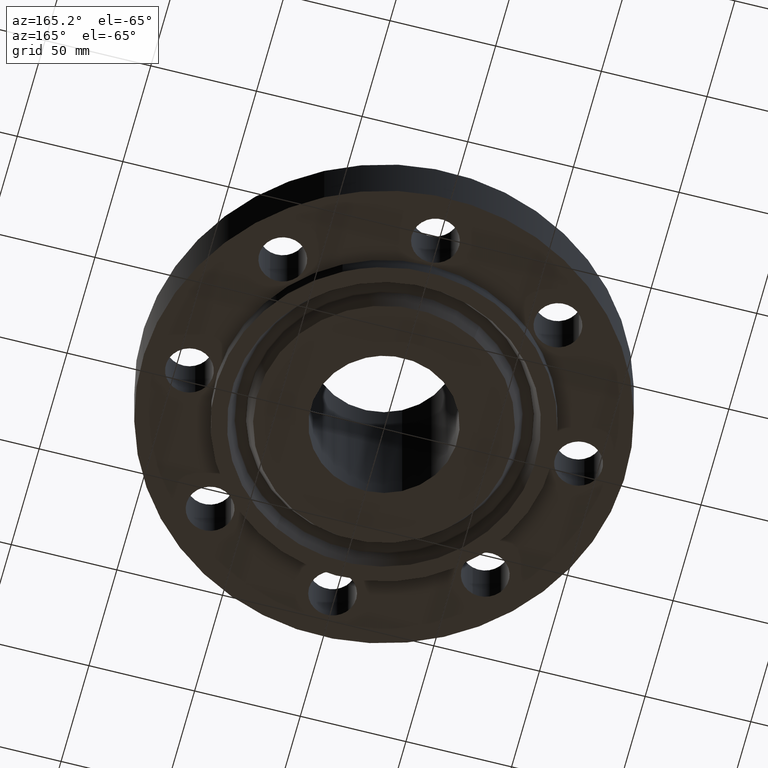
[diagram: clean part render]
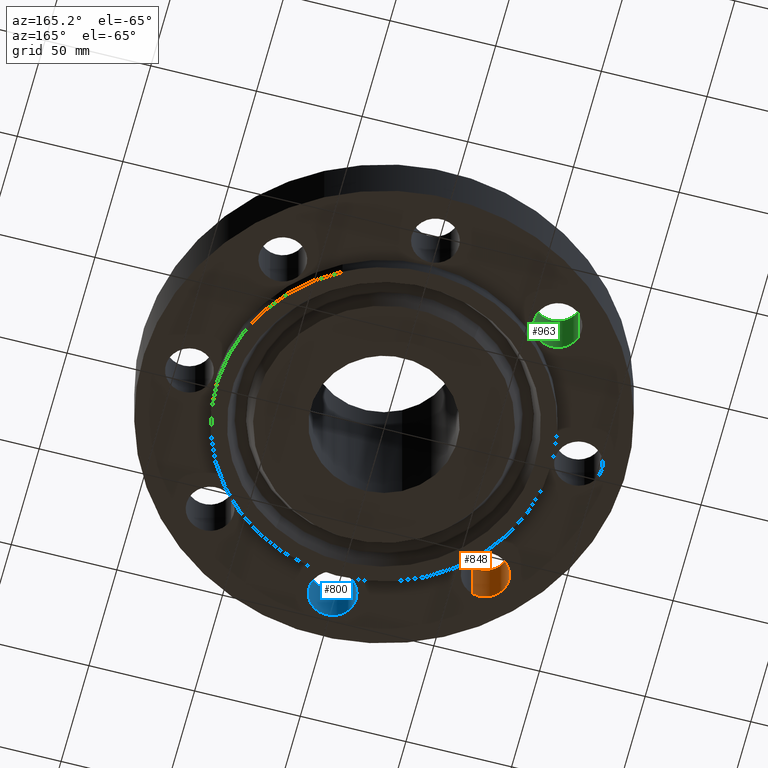
[diagram: same view with three faces highlighted in distinct colors, each labeled with its STEP entity id]
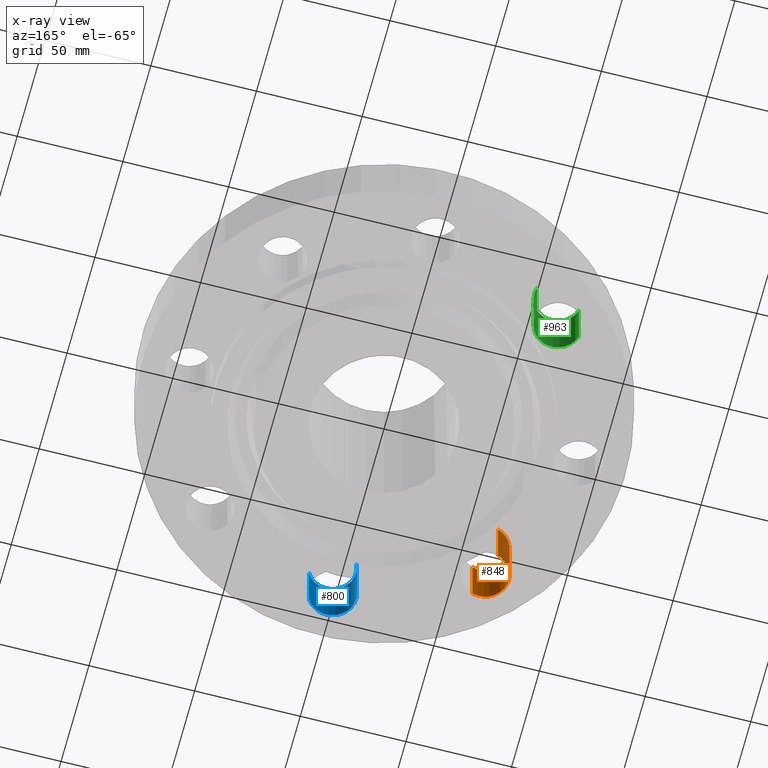
[diagram: x-ray of the same camera — body ghosted, the three highlighted faces saturated]
A machine part, auxiliary view with three faces highlighted in distinct colors.
The next image is the same camera in x-ray (body ghosted, the three faces saturated) — at least one of them is partly hidden behind the body in this view.
Their STEP definitions:

[orange] entity #848 — the highlighted cylindrical surface (edge-blend (fillet) strip) has radius 11.176 mm, axis along (0, 0, -1).
#255=AXIS2_PLACEMENT_3D('Circle Axis2P3D',#253,#254,$) ;
#444=AXIS2_PLACEMENT_3D('Circle Axis2P3D',#442,#443,$) ;
#830=AXIS2_PLACEMENT_3D('Cylinder Axis2P3D',#827,#828,#829) ;
#253=CARTESIAN_POINT('Axis2P3D Location',(-2.56326208182,-2.56326208179,0.)) ;
#257=CARTESIAN_POINT('Vertex',(-2.43938468815,-2.98546391898,0.)) ;
#259=CARTESIAN_POINT('Vertex',(-2.68713947554,-2.14106024462,0.)) ;
#437=CARTESIAN_POINT('Vertex',(-2.68713947551,-2.14106024461,1.11999999999)) ;
#439=CARTESIAN_POINT('Vertex',(-2.43938468811,-2.98546391901,1.11999999999)) ;
#442=CARTESIAN_POINT('Axis2P3D Location',(-2.5632620818,-2.5632620818,1.12)) ;
#827=CARTESIAN_POINT('Axis2P3D Location',(-2.56326208181,-2.56326208181,1.11606299213)) ;
#832=CARTESIAN_POINT('Line Origine',(-2.43938468811,-2.98546391901,0.56000000001)) ;
#837=CARTESIAN_POINT('Line Origine',(-2.68713947551,-2.14106024461,0.56000000001)) ;
#254=DIRECTION('Axis2P3D Direction',(0.,0.,-0.0393700787402)) ;
#443=DIRECTION('Axis2P3D Direction',(0.,0.,-0.0393700787402)) ;
#828=DIRECTION('Axis2P3D Direction',(0.,0.,-0.0393700787402)) ;
#829=DIRECTION('Axis2P3D XDirection',(0.0110842335096,-0.0377775444876,0.)) ;
#833=DIRECTION('Vector Direction',(0.,0.,-0.0393700787402)) ;
#838=DIRECTION('Vector Direction',(0.,0.,-0.0393700787402)) ;
#834=VECTOR('Line Direction',#833,0.0393700787402) ;
#839=VECTOR('Line Direction',#838,0.0393700787402) ;
#843=ORIENTED_EDGE('',*,*,#836,.F.) ;
#844=ORIENTED_EDGE('',*,*,#261,.T.) ;
#845=ORIENTED_EDGE('',*,*,#841,.T.) ;
#846=ORIENTED_EDGE('',*,*,#446,.F.) ;
#848=ADVANCED_FACE('PartBody',(#847),#831,.F.) ;
#256=CIRCLE('generated circle',#255,0.439999999984) ;
#445=CIRCLE('generated circle',#444,0.439999999984) ;
#831=CYLINDRICAL_SURFACE('generated cylinder',#830,0.440000000002) ;
#261=EDGE_CURVE('',#258,#260,#256,.T.) ;
#446=EDGE_CURVE('',#440,#438,#445,.T.) ;
#836=EDGE_CURVE('',#258,#440,#835,.F.) ;
#841=EDGE_CURVE('',#260,#438,#840,.F.) ;
#842=EDGE_LOOP('',(#843,#844,#845,#846)) ;
#847=FACE_OUTER_BOUND('',#842,.T.) ;
#835=LINE('Line',#832,#834) ;
#840=LINE('Line',#837,#839) ;
#258=VERTEX_POINT('',#257) ;
#260=VERTEX_POINT('',#259) ;
#438=VERTEX_POINT('',#437) ;
#440=VERTEX_POINT('',#439) ;

[blue] entity #800 — the highlighted cylindrical surface (edge-blend (fillet) strip) has radius 11.176 mm, axis along (0, 0, -1).
#237=AXIS2_PLACEMENT_3D('Circle Axis2P3D',#235,#236,$) ;
#426=AXIS2_PLACEMENT_3D('Circle Axis2P3D',#424,#425,$) ;
#782=AXIS2_PLACEMENT_3D('Cylinder Axis2P3D',#779,#780,#781) ;
#235=CARTESIAN_POINT('Axis2P3D Location',(3.08535699177E-011,-3.62499999998,0.)) ;
#239=CARTESIAN_POINT('Vertex',(0.386136327247,-3.83594723703,0.)) ;
#241=CARTESIAN_POINT('Vertex',(-0.386136327247,-3.41405276303,0.)) ;
#419=CARTESIAN_POINT('Vertex',(-0.386136327236,-3.41405276303,1.11999999999)) ;
#421=CARTESIAN_POINT('Vertex',(0.386136327233,-3.835947237,1.11999999999)) ;
#424=CARTESIAN_POINT('Axis2P3D Location',(6.99907323699E-012,-3.625,1.12)) ;
#779=CARTESIAN_POINT('Axis2P3D Location',(4.43934464693E-016,-3.62500000001,1.11606299213)) ;
#784=CARTESIAN_POINT('Line Origine',(0.386136327233,-3.835947237,0.56000000001)) ;
#789=CARTESIAN_POINT('Line Origine',(-0.386136327233,-3.41405276302,0.56000000001)) ;
#236=DIRECTION('Axis2P3D Direction',(0.,0.,-0.0393700787402)) ;
#425=DIRECTION('Axis2P3D Direction',(0.,0.,-0.0393700787402)) ;
#780=DIRECTION('Axis2P3D Direction',(0.,0.,-0.0393700787402)) ;
#781=DIRECTION('Axis2P3D XDirection',(0.0345504945626,-0.0188750212049,0.)) ;
#785=DIRECTION('Vector Direction',(0.,0.,-0.0393700787402)) ;
#790=DIRECTION('Vector Direction',(0.,0.,-0.0393700787402)) ;
#786=VECTOR('Line Direction',#785,0.0393700787402) ;
#791=VECTOR('Line Direction',#790,0.0393700787402) ;
#795=ORIENTED_EDGE('',*,*,#788,.F.) ;
#796=ORIENTED_EDGE('',*,*,#243,.T.) ;
#797=ORIENTED_EDGE('',*,*,#793,.T.) ;
#798=ORIENTED_EDGE('',*,*,#428,.F.) ;
#800=ADVANCED_FACE('PartBody',(#799),#783,.F.) ;
#238=CIRCLE('generated circle',#237,0.44000000002) ;
#427=CIRCLE('generated circle',#426,0.440000000002) ;
#783=CYLINDRICAL_SURFACE('generated cylinder',#782,0.440000000002) ;
#243=EDGE_CURVE('',#240,#242,#238,.T.) ;
#428=EDGE_CURVE('',#422,#420,#427,.T.) ;
#788=EDGE_CURVE('',#240,#422,#787,.F.) ;
#793=EDGE_CURVE('',#242,#420,#792,.F.) ;
#794=EDGE_LOOP('',(#795,#796,#797,#798)) ;
#799=FACE_OUTER_BOUND('',#794,.T.) ;
#787=LINE('Line',#784,#786) ;
#792=LINE('Line',#789,#791) ;
#240=VERTEX_POINT('',#239) ;
#242=VERTEX_POINT('',#241) ;
#420=VERTEX_POINT('',#419) ;
#422=VERTEX_POINT('',#421) ;

[green] entity #963 — the highlighted cylindrical surface (edge-blend (fillet) strip) has radius 11.176 mm, axis along (0, 0, -1).
#300=AXIS2_PLACEMENT_3D('Circle Axis2P3D',#298,#299,$) ;
#471=AXIS2_PLACEMENT_3D('Circle Axis2P3D',#469,#470,$) ;
#955=AXIS2_PLACEMENT_3D('Cylinder Axis2P3D',#952,#953,#954) ;
#293=CARTESIAN_POINT('Vertex',(-2.98546391899,2.43938468808,0.)) ;
#295=CARTESIAN_POINT('Vertex',(-2.14106024463,2.68713947548,0.)) ;
#298=CARTESIAN_POINT('Axis2P3D Location',(-2.56326208181,2.5632620818,0.)) ;
#469=CARTESIAN_POINT('Axis2P3D Location',(-2.56326208179,2.56326208179,1.12)) ;
#473=CARTESIAN_POINT('Vertex',(-2.14106024461,2.68713947551,1.11999999999)) ;
#475=CARTESIAN_POINT('Vertex',(-2.98546391901,2.43938468811,1.11999999999)) ;
#928=CARTESIAN_POINT('Line Origine',(-2.98546391901,2.43938468811,0.56000000001)) ;
#933=CARTESIAN_POINT('Line Origine',(-2.14106024461,2.68713947551,0.56000000001)) ;
#952=CARTESIAN_POINT('Axis2P3D Location',(-2.56326208181,2.56326208181,1.11606299213)) ;
#299=DIRECTION('Axis2P3D Direction',(0.,0.,-0.0393700787402)) ;
#470=DIRECTION('Axis2P3D Direction',(0.,0.,-0.0393700787402)) ;
#929=DIRECTION('Vector Direction',(0.,0.,-0.0393700787402)) ;
#934=DIRECTION('Vector Direction',(0.,0.,-0.0393700787402)) ;
#953=DIRECTION('Axis2P3D Direction',(0.,0.,-0.0393700787402)) ;
#954=DIRECTION('Axis2P3D XDirection',(0.0377775444876,0.0110842335096,0.)) ;
#930=VECTOR('Line Direction',#929,0.0393700787402) ;
#935=VECTOR('Line Direction',#934,0.0393700787402) ;
#958=ORIENTED_EDGE('',*,*,#937,.F.) ;
#959=ORIENTED_EDGE('',*,*,#302,.T.) ;
#960=ORIENTED_EDGE('',*,*,#932,.T.) ;
#961=ORIENTED_EDGE('',*,*,#477,.F.) ;
#963=ADVANCED_FACE('PartBody',(#962),#956,.F.) ;
#301=CIRCLE('generated circle',#300,0.439999999984) ;
#472=CIRCLE('generated circle',#471,0.439999999984) ;
#956=CYLINDRICAL_SURFACE('generated cylinder',#955,0.440000000002) ;
#302=EDGE_CURVE('',#296,#294,#301,.T.) ;
#477=EDGE_CURVE('',#474,#476,#472,.T.) ;
#932=EDGE_CURVE('',#294,#476,#931,.F.) ;
#937=EDGE_CURVE('',#296,#474,#936,.F.) ;
#957=EDGE_LOOP('',(#958,#959,#960,#961)) ;
#962=FACE_OUTER_BOUND('',#957,.T.) ;
#931=LINE('Line',#928,#930) ;
#936=LINE('Line',#933,#935) ;
#294=VERTEX_POINT('',#293) ;
#296=VERTEX_POINT('',#295) ;
#474=VERTEX_POINT('',#473) ;
#476=VERTEX_POINT('',#475) ;